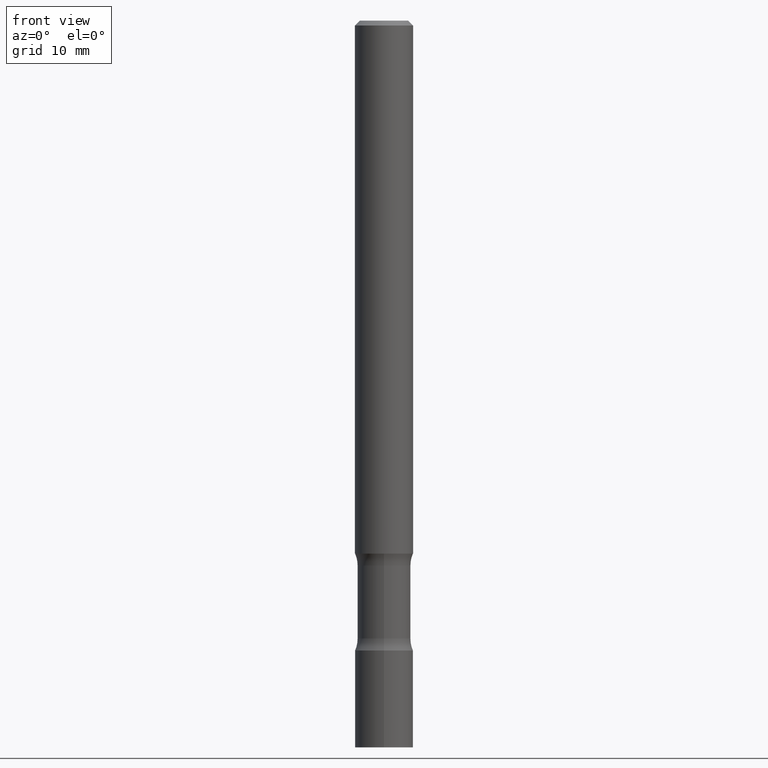
[diagram: clean part render]
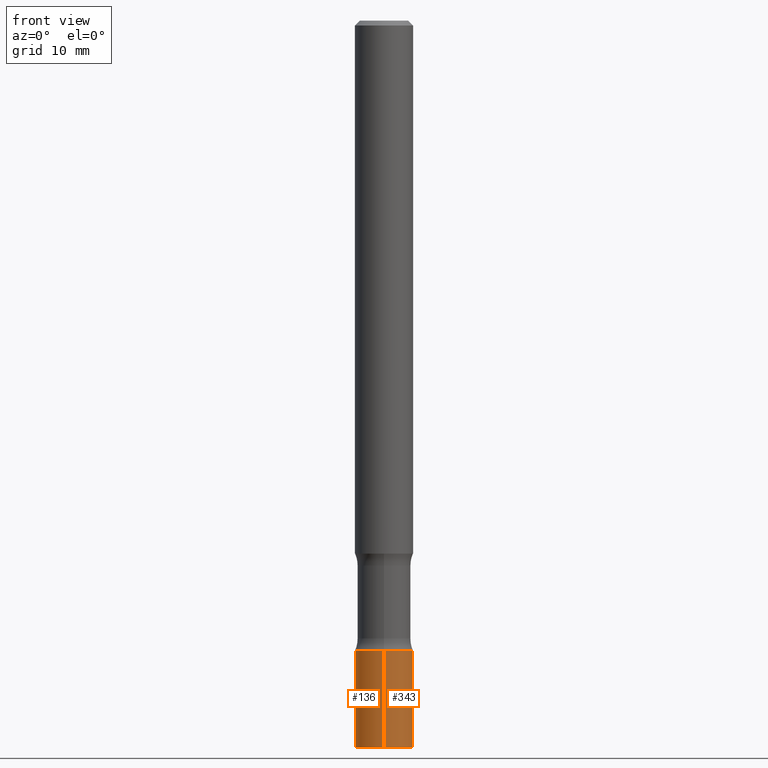
[diagram: same view with one multi-face feature highlighted, each face labeled with its STEP entity id]
A machine part, front view. The highlighted faces form ONE feature: a constant-radius fillet chain: 2 tangent blend faces with common blend radius 2.9997 mm. The faces share edges in the B-rep.
Their STEP definitions:
[1] entity #343 (Cylinder):
#10 = CARTESIAN_POINT ( 'NONE',  ( 6.275416607577824437E-29, -8.910393618002115250E-15, -2.559099999999999486 ) ) ;
#15 = CARTESIAN_POINT ( 'NONE',  ( 8.391509709327467294E-16, 0.1180999999999898797, -2.952800000000000313 ) ) ;
#16 = EDGE_CURVE ( 'NONE', #358, #102, #217, .T. ) ;
#21 = CIRCLE ( 'NONE', #311, 0.1181000000000001354 ) ;
#45 = DIRECTION ( 'NONE',  ( -2.452196712741912145E-29, 3.481846593725182819E-15, 1.000000000000000000 ) ) ;
#50 = CARTESIAN_POINT ( 'NONE',  ( -8.246878922346764763E-16, -0.1181000000000104189, -2.952799999999998981 ) ) ;
#102 = VERTEX_POINT ( 'NONE', #305 ) ;
#103 = VECTOR ( 'NONE', #45, 39.37007874015748143 ) ;
#124 = DIRECTION ( 'NONE',  ( -2.452196712741911865E-29, 3.481846593725182819E-15, 1.000000000000000000 ) ) ;
#145 = VERTEX_POINT ( 'NONE', #309 ) ;
#147 = EDGE_CURVE ( 'NONE', #326, #145, #403, .T. ) ;
#150 = DIRECTION ( 'NONE',  ( -2.452196712741912145E-29, 3.481846593725182819E-15, 1.000000000000000000 ) ) ;
#173 = CARTESIAN_POINT ( 'NONE',  ( 0.000000000000000000, 0.000000000000000000, 0.000000000000000000 ) ) ;
#177 = DIRECTION ( 'NONE',  ( -2.452196712741911865E-29, 3.481846593725182819E-15, 1.000000000000000000 ) ) ;
#195 = ORIENTED_EDGE ( 'NONE', *, *, #16, .F. ) ;
#197 = EDGE_CURVE ( 'NONE', #358, #326, #21, .T. ) ;
#212 = VECTOR ( 'NONE', #150, 39.37007874015748143 ) ;
#217 = LINE ( 'NONE', #377, #212 ) ;
#234 = DIRECTION ( 'NONE',  ( -6.982962677686265922E-15, -1.000000000000000000, 4.626330217890364603E-15 ) ) ;
#258 = ORIENTED_EDGE ( 'NONE', *, *, #147, .T. ) ;
#272 = CARTESIAN_POINT ( 'NONE',  ( 8.391509709326788873E-16, 0.1181000000000001077, -4.112060827189444448E-16 ) ) ;
#274 = CIRCLE ( 'NONE', #366, 0.1181000000000000799 ) ;
#279 = DIRECTION ( 'NONE',  ( -6.982962677686265133E-15, -1.000000000000000000, 3.481846593725182819E-15 ) ) ;
#282 = DIRECTION ( 'NONE',  ( -6.982962677686265922E-15, -1.000000000000000000, 4.626330217890366181E-15 ) ) ;
#305 = CARTESIAN_POINT ( 'NONE',  ( -8.246878922346858440E-16, -0.1181000000000089895, -2.559099999999999042 ) ) ;
#309 = CARTESIAN_POINT ( 'NONE',  ( 8.391509709327510681E-16, 0.1180999999999911565, -2.559099999999999930 ) ) ;
#311 = AXIS2_PLACEMENT_3D ( 'NONE', #359, #124, #234 ) ;
#326 = VERTEX_POINT ( 'NONE', #15 ) ;
#333 = EDGE_LOOP ( 'NONE', ( #420, #258, #456, #195 ) ) ;
#343 = ADVANCED_FACE ( 'NONE', ( #417 ), #413, .T. ) ;
#358 = VERTEX_POINT ( 'NONE', #50 ) ;
#359 = CARTESIAN_POINT ( 'NONE',  ( 7.240846453384315929E-29, -1.028119662195171812E-14, -2.952799999999999869 ) ) ;
#366 = AXIS2_PLACEMENT_3D ( 'NONE', #10, #447, #282 ) ;
#377 = CARTESIAN_POINT ( 'NONE',  ( -8.246878922347486570E-16, -0.1181000000000001077, 4.112060827189444448E-16 ) ) ;
#403 = LINE ( 'NONE', #272, #103 ) ;
#412 = EDGE_CURVE ( 'NONE', #102, #145, #274, .T. ) ;
#413 = CYLINDRICAL_SURFACE ( 'NONE', #505, 0.1181000000000001077 ) ;
#417 = FACE_OUTER_BOUND ( 'NONE', #333, .T. ) ;
#420 = ORIENTED_EDGE ( 'NONE', *, *, #197, .T. ) ;
#447 = DIRECTION ( 'NONE',  ( -2.452196712741911865E-29, 3.481846593725182819E-15, 1.000000000000000000 ) ) ;
#456 = ORIENTED_EDGE ( 'NONE', *, *, #412, .F. ) ;
#505 = AXIS2_PLACEMENT_3D ( 'NONE', #173, #177, #279 ) ;
[2] entity #136 (Cylinder):
#9 = CARTESIAN_POINT ( 'NONE',  ( 7.240846453384315929E-29, -1.028119662195171812E-14, -2.952799999999999869 ) ) ;
#15 = CARTESIAN_POINT ( 'NONE',  ( 8.391509709327467294E-16, 0.1180999999999898797, -2.952800000000000313 ) ) ;
#16 = EDGE_CURVE ( 'NONE', #358, #102, #217, .T. ) ;
#45 = DIRECTION ( 'NONE',  ( -2.452196712741912145E-29, 3.481846593725182819E-15, 1.000000000000000000 ) ) ;
#50 = CARTESIAN_POINT ( 'NONE',  ( -8.246878922346764763E-16, -0.1181000000000104189, -2.952799999999998981 ) ) ;
#63 = ORIENTED_EDGE ( 'NONE', *, *, #16, .T. ) ;
#72 = CIRCLE ( 'NONE', #347, 0.1181000000000000799 ) ;
#92 = CARTESIAN_POINT ( 'NONE',  ( 6.275416607577824437E-29, -8.910393618002115250E-15, -2.559099999999999486 ) ) ;
#102 = VERTEX_POINT ( 'NONE', #305 ) ;
#103 = VECTOR ( 'NONE', #45, 39.37007874015748143 ) ;
#133 = DIRECTION ( 'NONE',  ( -2.452196712741911865E-29, 3.481846593725182819E-15, 1.000000000000000000 ) ) ;
#136 = ADVANCED_FACE ( 'NONE', ( #397 ), #444, .T. ) ;
#145 = VERTEX_POINT ( 'NONE', #309 ) ;
#147 = EDGE_CURVE ( 'NONE', #326, #145, #403, .T. ) ;
#150 = DIRECTION ( 'NONE',  ( -2.452196712741912145E-29, 3.481846593725182819E-15, 1.000000000000000000 ) ) ;
#165 = CARTESIAN_POINT ( 'NONE',  ( 0.000000000000000000, 0.000000000000000000, 0.000000000000000000 ) ) ;
#168 = EDGE_CURVE ( 'NONE', #326, #358, #409, .T. ) ;
#176 = ORIENTED_EDGE ( 'NONE', *, *, #147, .F. ) ;
#185 = AXIS2_PLACEMENT_3D ( 'NONE', #9, #205, #364 ) ;
#198 = DIRECTION ( 'NONE',  ( -2.452196712741911865E-29, 3.481846593725182819E-15, 1.000000000000000000 ) ) ;
#205 = DIRECTION ( 'NONE',  ( -2.452196712741911865E-29, 3.481846593725182819E-15, 1.000000000000000000 ) ) ;
#212 = VECTOR ( 'NONE', #150, 39.37007874015748143 ) ;
#215 = ORIENTED_EDGE ( 'NONE', *, *, #328, .F. ) ;
#217 = LINE ( 'NONE', #377, #212 ) ;
#248 = ORIENTED_EDGE ( 'NONE', *, *, #168, .T. ) ;
#272 = CARTESIAN_POINT ( 'NONE',  ( 8.391509709326788873E-16, 0.1181000000000001077, -4.112060827189444448E-16 ) ) ;
#290 = DIRECTION ( 'NONE',  ( -6.982962677686265922E-15, -1.000000000000000000, 4.626330217890366181E-15 ) ) ;
#293 = AXIS2_PLACEMENT_3D ( 'NONE', #165, #198, #350 ) ;
#305 = CARTESIAN_POINT ( 'NONE',  ( -8.246878922346858440E-16, -0.1181000000000089895, -2.559099999999999042 ) ) ;
#309 = CARTESIAN_POINT ( 'NONE',  ( 8.391509709327510681E-16, 0.1180999999999911565, -2.559099999999999930 ) ) ;
#326 = VERTEX_POINT ( 'NONE', #15 ) ;
#328 = EDGE_CURVE ( 'NONE', #145, #102, #72, .T. ) ;
#347 = AXIS2_PLACEMENT_3D ( 'NONE', #92, #133, #290 ) ;
#350 = DIRECTION ( 'NONE',  ( -6.982962677686265133E-15, -1.000000000000000000, 3.481846593725182819E-15 ) ) ;
#358 = VERTEX_POINT ( 'NONE', #50 ) ;
#364 = DIRECTION ( 'NONE',  ( -6.982962677686265922E-15, -1.000000000000000000, 4.626330217890364603E-15 ) ) ;
#377 = CARTESIAN_POINT ( 'NONE',  ( -8.246878922347486570E-16, -0.1181000000000001077, 4.112060827189444448E-16 ) ) ;
#397 = FACE_OUTER_BOUND ( 'NONE', #446, .T. ) ;
#403 = LINE ( 'NONE', #272, #103 ) ;
#409 = CIRCLE ( 'NONE', #185, 0.1181000000000001354 ) ;
#444 = CYLINDRICAL_SURFACE ( 'NONE', #293, 0.1181000000000001077 ) ;
#446 = EDGE_LOOP ( 'NONE', ( #176, #248, #63, #215 ) ) ;